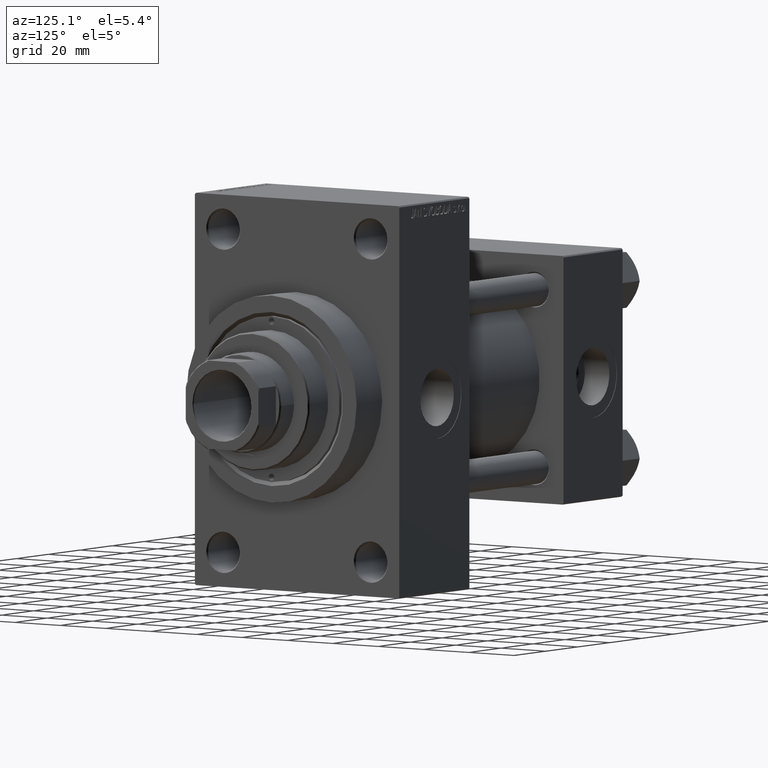
[diagram: clean part render]
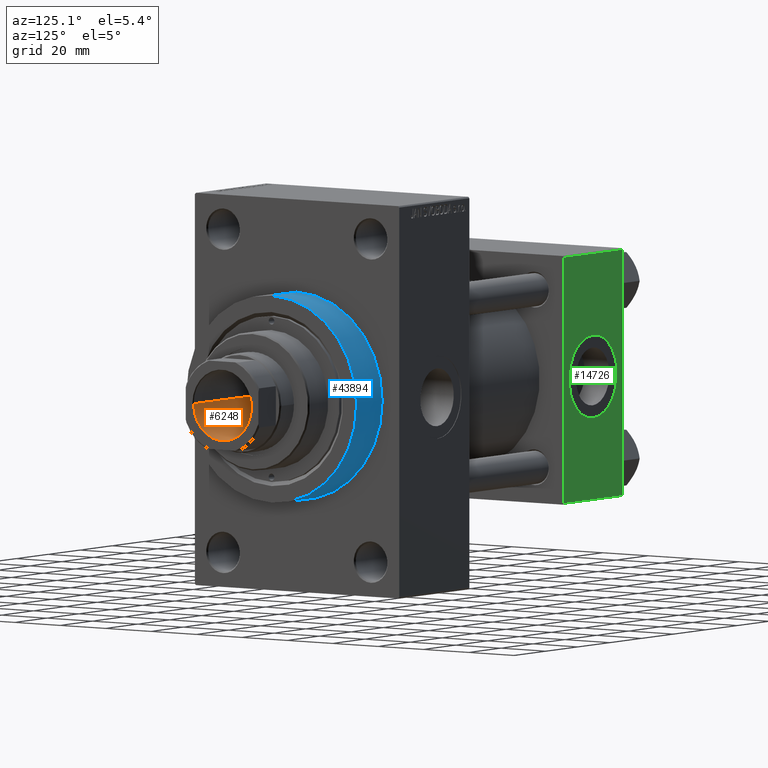
[diagram: same view with three faces highlighted in distinct colors, each labeled with its STEP entity id]
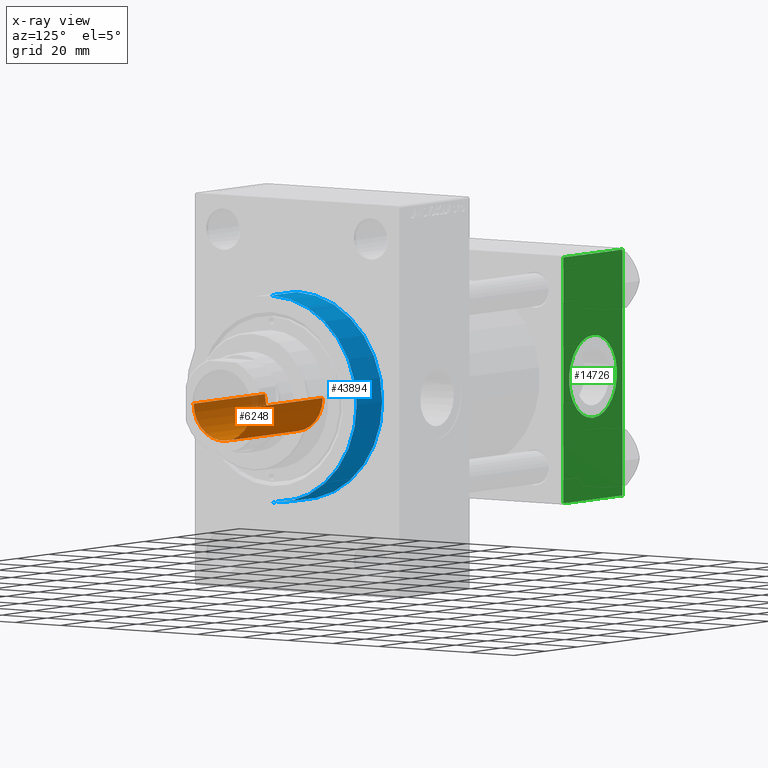
[diagram: x-ray of the same camera — body ghosted, the three highlighted faces saturated]
A machine part, auxiliary view with three faces highlighted in distinct colors.
The next image is the same camera in x-ray (body ghosted, the three faces saturated) — at least one of them is partly hidden behind the body in this view.
Their STEP definitions:

[orange] entity #6248 — the highlighted cylindrical surface (edge-blend (fillet) strip) has radius 12.75 mm, axis along (1, 0, 0).
#2246 = EDGE_CURVE ( 'NONE', #38660, #35820, #5818, .T. ) ;
#4436 = DIRECTION ( 'NONE',  ( 0.000000000000000000, 0.000000000000000000, 1.000000000000000000 ) ) ;
#4925 = VERTEX_POINT ( 'NONE', #30896 ) ;
#5111 = CARTESIAN_POINT ( 'NONE',  ( 12.74999999999999112, 0.000000000000000000, 150.0000000000000284 ) ) ;
#5140 = AXIS2_PLACEMENT_3D ( 'NONE', #15851, #41509, #45107 ) ;
#5649 = ORIENTED_EDGE ( 'NONE', *, *, #29959, .F. ) ;
#5818 = LINE ( 'NONE', #5111, #9710 ) ;
#6248 = ADVANCED_FACE ( 'NONE', ( #15623 ), #34312, .F. ) ;
#7323 = CARTESIAN_POINT ( 'NONE',  ( 0.000000000000000000, 0.000000000000000000, 149.7000000000000455 ) ) ;
#8190 = CIRCLE ( 'NONE', #41917, 12.74999999999999112 ) ;
#9710 = VECTOR ( 'NONE', #13036, 1000.000000000000000 ) ;
#10618 = CARTESIAN_POINT ( 'NONE',  ( -12.74999999999999112, 1.561424668912874125E-15, 149.7000000000000455 ) ) ;
#10990 = VECTOR ( 'NONE', #45402, 1000.000000000000000 ) ;
#12784 = CARTESIAN_POINT ( 'NONE',  ( -12.74999999999999112, 1.561424668912874125E-15, 150.0000000000000284 ) ) ;
#12925 = VERTEX_POINT ( 'NONE', #10618 ) ;
#13036 = DIRECTION ( 'NONE',  ( -0.000000000000000000, -0.000000000000000000, 1.000000000000000000 ) ) ;
#15623 = FACE_OUTER_BOUND ( 'NONE', #33814, .T. ) ;
#15851 = CARTESIAN_POINT ( 'NONE',  ( 0.000000000000000000, 0.000000000000000000, 150.0000000000000284 ) ) ;
#17864 = DIRECTION ( 'NONE',  ( -0.000000000000000000, -0.000000000000000000, 1.000000000000000000 ) ) ;
#20236 = CARTESIAN_POINT ( 'NONE',  ( 12.74999999999998934, 0.000000000000000000, 105.0000000000000284 ) ) ;
#21090 = ORIENTED_EDGE ( 'NONE', *, *, #34654, .T. ) ;
#21516 = CIRCLE ( 'NONE', #45241, 12.74999999999998934 ) ;
#25554 = ORIENTED_EDGE ( 'NONE', *, *, #46280, .F. ) ;
#26520 = DIRECTION ( 'NONE',  ( 1.000000000000000000, 0.000000000000000000, 0.000000000000000000 ) ) ;
#29959 = EDGE_CURVE ( 'NONE', #4925, #12925, #41794, .T. ) ;
#30896 = CARTESIAN_POINT ( 'NONE',  ( -12.74999999999998934, 1.561424668912873928E-15, 105.0000000000000284 ) ) ;
#33814 = EDGE_LOOP ( 'NONE', ( #5649, #25554, #43023, #21090 ) ) ;
#34312 = CYLINDRICAL_SURFACE ( 'NONE', #5140, 12.74999999999999112 ) ;
#34654 = EDGE_CURVE ( 'NONE', #35820, #12925, #8190, .T. ) ;
#35820 = VERTEX_POINT ( 'NONE', #45753 ) ;
#38660 = VERTEX_POINT ( 'NONE', #20236 ) ;
#41509 = DIRECTION ( 'NONE',  ( -0.000000000000000000, -0.000000000000000000, 1.000000000000000000 ) ) ;
#41794 = LINE ( 'NONE', #12784, #10990 ) ;
#41917 = AXIS2_PLACEMENT_3D ( 'NONE', #7323, #4436, #26520 ) ;
#43023 = ORIENTED_EDGE ( 'NONE', *, *, #2246, .T. ) ;
#43275 = CARTESIAN_POINT ( 'NONE',  ( 0.000000000000000000, 0.000000000000000000, 105.0000000000000284 ) ) ;
#45107 = DIRECTION ( 'NONE',  ( 1.000000000000000000, 0.000000000000000000, 0.000000000000000000 ) ) ;
#45241 = AXIS2_PLACEMENT_3D ( 'NONE', #43275, #17864, #47110 ) ;
#45402 = DIRECTION ( 'NONE',  ( -0.000000000000000000, -0.000000000000000000, 1.000000000000000000 ) ) ;
#45753 = CARTESIAN_POINT ( 'NONE',  ( 12.74999999999999112, 0.000000000000000000, 149.7000000000000455 ) ) ;
#46280 = EDGE_CURVE ( 'NONE', #38660, #4925, #21516, .T. ) ;
#47110 = DIRECTION ( 'NONE',  ( 1.000000000000000000, 0.000000000000000000, 0.000000000000000000 ) ) ;

[blue] entity #43894 — the highlighted cylindrical surface (partial cylindrical patch) has radius 37.5 mm, axis along (-1, -0, -0).
#617 = LINE ( 'NONE', #44263, #9022 ) ;
#1601 = ORIENTED_EDGE ( 'NONE', *, *, #36346, .F. ) ;
#4123 = EDGE_CURVE ( 'NONE', #45225, #32194, #41336, .T. ) ;
#5523 = CARTESIAN_POINT ( 'NONE',  ( 156.0000000000000284, 0.000000000000000000, 0.000000000000000000 ) ) ;
#6311 = CARTESIAN_POINT ( 'NONE',  ( 140.0000000000000000, 4.592425496802575156E-15, -37.50000000000000711 ) ) ;
#6324 = EDGE_CURVE ( 'NONE', #45225, #9123, #12824, .T. ) ;
#7258 = FACE_OUTER_BOUND ( 'NONE', #27416, .T. ) ;
#8201 = DIRECTION ( 'NONE',  ( 1.000000000000000000, 0.000000000000000000, 0.000000000000000000 ) ) ;
#8483 = DIRECTION ( 'NONE',  ( -1.000000000000000000, -0.000000000000000000, -0.000000000000000000 ) ) ;
#8983 = AXIS2_PLACEMENT_3D ( 'NONE', #5523, #12971, #27603 ) ;
#9022 = VECTOR ( 'NONE', #11417, 1000.000000000000000 ) ;
#9123 = VERTEX_POINT ( 'NONE', #43166 ) ;
#11360 = CARTESIAN_POINT ( 'NONE',  ( 156.0000000000000284, 4.592425496802575156E-15, -37.50000000000000711 ) ) ;
#11417 = DIRECTION ( 'NONE',  ( -1.000000000000000000, -0.000000000000000000, -0.000000000000000000 ) ) ;
#11683 = CIRCLE ( 'NONE', #27778, 37.50000000000000711 ) ;
#11813 = DIRECTION ( 'NONE',  ( 0.000000000000000000, 0.000000000000000000, -1.000000000000000000 ) ) ;
#12824 = CIRCLE ( 'NONE', #8983, 37.50000000000000711 ) ;
#12971 = DIRECTION ( 'NONE',  ( 1.000000000000000000, 0.000000000000000000, 0.000000000000000000 ) ) ;
#13425 = ORIENTED_EDGE ( 'NONE', *, *, #23034, .T. ) ;
#14467 = CARTESIAN_POINT ( 'NONE',  ( 156.0000000000000284, 0.000000000000000000, 0.000000000000000000 ) ) ;
#18313 = DIRECTION ( 'NONE',  ( 0.000000000000000000, 0.000000000000000000, 1.000000000000000000 ) ) ;
#18782 = DIRECTION ( 'NONE',  ( -1.000000000000000000, -0.000000000000000000, -0.000000000000000000 ) ) ;
#23034 = EDGE_CURVE ( 'NONE', #32194, #37012, #11683, .T. ) ;
#26299 = CARTESIAN_POINT ( 'NONE',  ( 156.0000000000000284, 4.592425496802575156E-15, -37.50000000000000711 ) ) ;
#26771 = ORIENTED_EDGE ( 'NONE', *, *, #4123, .T. ) ;
#27416 = EDGE_LOOP ( 'NONE', ( #46041, #26771, #13425, #1601 ) ) ;
#27603 = DIRECTION ( 'NONE',  ( 0.000000000000000000, 0.000000000000000000, -1.000000000000000000 ) ) ;
#27778 = AXIS2_PLACEMENT_3D ( 'NONE', #37930, #8201, #11813 ) ;
#28789 = VECTOR ( 'NONE', #8483, 1000.000000000000000 ) ;
#32194 = VERTEX_POINT ( 'NONE', #6311 ) ;
#36346 = EDGE_CURVE ( 'NONE', #9123, #37012, #617, .T. ) ;
#37012 = VERTEX_POINT ( 'NONE', #39259 ) ;
#37930 = CARTESIAN_POINT ( 'NONE',  ( 140.0000000000000000, 0.000000000000000000, 0.000000000000000000 ) ) ;
#39259 = CARTESIAN_POINT ( 'NONE',  ( 140.0000000000000000, 0.000000000000000000, 37.50000000000000711 ) ) ;
#40124 = CYLINDRICAL_SURFACE ( 'NONE', #42045, 37.50000000000000711 ) ;
#41336 = LINE ( 'NONE', #11360, #28789 ) ;
#42045 = AXIS2_PLACEMENT_3D ( 'NONE', #14467, #18782, #18313 ) ;
#43166 = CARTESIAN_POINT ( 'NONE',  ( 156.0000000000000284, 0.000000000000000000, 37.50000000000000711 ) ) ;
#43894 = ADVANCED_FACE ( 'NONE', ( #7258 ), #40124, .T. ) ;
#44263 = CARTESIAN_POINT ( 'NONE',  ( 156.0000000000000284, 0.000000000000000000, 37.50000000000000711 ) ) ;
#45225 = VERTEX_POINT ( 'NONE', #26299 ) ;
#46041 = ORIENTED_EDGE ( 'NONE', *, *, #6324, .F. ) ;

[green] entity #14726 — the highlighted planar face has unit normal (0, 1, 0).
#598 = DIRECTION ( 'NONE',  ( 0.000000000000000000, 0.000000000000000000, -1.000000000000000000 ) ) ;
#1128 = VERTEX_POINT ( 'NONE', #47098 ) ;
#1903 = EDGE_CURVE ( 'NONE', #1128, #16282, #40312, .T. ) ;
#2832 = VECTOR ( 'NONE', #40315, 1000.000000000000000 ) ;
#3485 = EDGE_CURVE ( 'NONE', #28766, #12016, #43922, .T. ) ;
#4323 = CARTESIAN_POINT ( 'NONE',  ( 37.00000000000000000, 44.99999999999998579, 45.00000000000001421 ) ) ;
#4920 = CARTESIAN_POINT ( 'NONE',  ( 37.00000000000000000, 44.99999999999998579, 44.50000000000001421 ) ) ;
#6116 = CARTESIAN_POINT ( 'NONE',  ( 0.000000000000000000, 44.99999999999998579, 44.50000000000001421 ) ) ;
#8058 = DIRECTION ( 'NONE',  ( 0.000000000000000000, 0.000000000000000000, 1.000000000000000000 ) ) ;
#8119 = LINE ( 'NONE', #18690, #22890 ) ;
#8300 = DIRECTION ( 'NONE',  ( 0.000000000000000000, 1.000000000000000000, 0.000000000000000000 ) ) ;
#8564 = DIRECTION ( 'NONE',  ( 0.000000000000000000, 0.000000000000000000, 1.000000000000000000 ) ) ;
#9435 = CARTESIAN_POINT ( 'NONE',  ( 0.000000000000000000, 44.99999999999998579, -44.49999999999995737 ) ) ;
#11061 = DIRECTION ( 'NONE',  ( 0.000000000000000000, -0.000000000000000000, 1.000000000000000000 ) ) ;
#11066 = CARTESIAN_POINT ( 'NONE',  ( 37.00000000000000000, 44.99999999999998579, 45.00000000000001421 ) ) ;
#11637 = CARTESIAN_POINT ( 'NONE',  ( 0.000000000000000000, 44.99999999999998579, 45.00000000000001421 ) ) ;
#12016 = VERTEX_POINT ( 'NONE', #13973 ) ;
#13973 = CARTESIAN_POINT ( 'NONE',  ( 37.00000000000000000, 44.99999999999998579, -44.49999999999995737 ) ) ;
#14726 = ADVANCED_FACE ( 'NONE', ( #47272, #25695 ), #25932, .T. ) ;
#16282 = VERTEX_POINT ( 'NONE', #39204 ) ;
#17340 = VERTEX_POINT ( 'NONE', #6116 ) ;
#17345 = AXIS2_PLACEMENT_3D ( 'NONE', #26302, #8300, #8058 ) ;
#18628 = AXIS2_PLACEMENT_3D ( 'NONE', #41421, #40937, #8564 ) ;
#18690 = CARTESIAN_POINT ( 'NONE',  ( 37.00000000000000000, 44.99999999999998579, 44.50000000000001421 ) ) ;
#19455 = VECTOR ( 'NONE', #23586, 1000.000000000000000 ) ;
#19787 = LINE ( 'NONE', #11637, #40182 ) ;
#19933 = ORIENTED_EDGE ( 'NONE', *, *, #24822, .F. ) ;
#20856 = ORIENTED_EDGE ( 'NONE', *, *, #29982, .T. ) ;
#22572 = DIRECTION ( 'NONE',  ( -0.000000000000000000, 1.000000000000000000, 0.000000000000000000 ) ) ;
#22890 = VECTOR ( 'NONE', #29703, 1000.000000000000000 ) ;
#23002 = EDGE_LOOP ( 'NONE', ( #29425, #19933 ) ) ;
#23586 = DIRECTION ( 'NONE',  ( -1.000000000000000000, 0.000000000000000000, 0.000000000000000000 ) ) ;
#24822 = EDGE_CURVE ( 'NONE', #16282, #1128, #32410, .T. ) ;
#25520 = ORIENTED_EDGE ( 'NONE', *, *, #3485, .T. ) ;
#25695 = FACE_OUTER_BOUND ( 'NONE', #44655, .T. ) ;
#25932 = PLANE ( 'NONE',  #33616 ) ;
#25972 = ORIENTED_EDGE ( 'NONE', *, *, #38996, .T. ) ;
#26302 = CARTESIAN_POINT ( 'NONE',  ( 18.50000000000000000, 44.99999999999998579, 0.000000000000000000 ) ) ;
#27412 = LINE ( 'NONE', #27657, #19455 ) ;
#27657 = CARTESIAN_POINT ( 'NONE',  ( 37.00000000000000000, 44.99999999999998579, -44.49999999999998579 ) ) ;
#28766 = VERTEX_POINT ( 'NONE', #4920 ) ;
#29425 = ORIENTED_EDGE ( 'NONE', *, *, #1903, .F. ) ;
#29703 = DIRECTION ( 'NONE',  ( 1.000000000000000000, 0.000000000000000000, 0.000000000000000000 ) ) ;
#29982 = EDGE_CURVE ( 'NONE', #12016, #40434, #27412, .T. ) ;
#31602 = ORIENTED_EDGE ( 'NONE', *, *, #31993, .F. ) ;
#31993 = EDGE_CURVE ( 'NONE', #17340, #40434, #19787, .T. ) ;
#32410 = CIRCLE ( 'NONE', #18628, 15.00000000000000178 ) ;
#33616 = AXIS2_PLACEMENT_3D ( 'NONE', #4323, #22572, #11061 ) ;
#38996 = EDGE_CURVE ( 'NONE', #17340, #28766, #8119, .T. ) ;
#39204 = CARTESIAN_POINT ( 'NONE',  ( 18.50000000000000355, 44.99999999999998579, -15.00000000000000178 ) ) ;
#40182 = VECTOR ( 'NONE', #598, 1000.000000000000000 ) ;
#40312 = CIRCLE ( 'NONE', #17345, 15.00000000000000178 ) ;
#40315 = DIRECTION ( 'NONE',  ( 0.000000000000000000, 0.000000000000000000, -1.000000000000000000 ) ) ;
#40434 = VERTEX_POINT ( 'NONE', #9435 ) ;
#40937 = DIRECTION ( 'NONE',  ( 0.000000000000000000, 1.000000000000000000, 0.000000000000000000 ) ) ;
#41421 = CARTESIAN_POINT ( 'NONE',  ( 18.50000000000000000, 44.99999999999998579, 0.000000000000000000 ) ) ;
#43922 = LINE ( 'NONE', #11066, #2832 ) ;
#44655 = EDGE_LOOP ( 'NONE', ( #25520, #20856, #31602, #25972 ) ) ;
#47098 = CARTESIAN_POINT ( 'NONE',  ( 18.50000000000000000, 44.99999999999998579, 15.00000000000000178 ) ) ;
#47272 = FACE_BOUND ( 'NONE', #23002, .T. ) ;